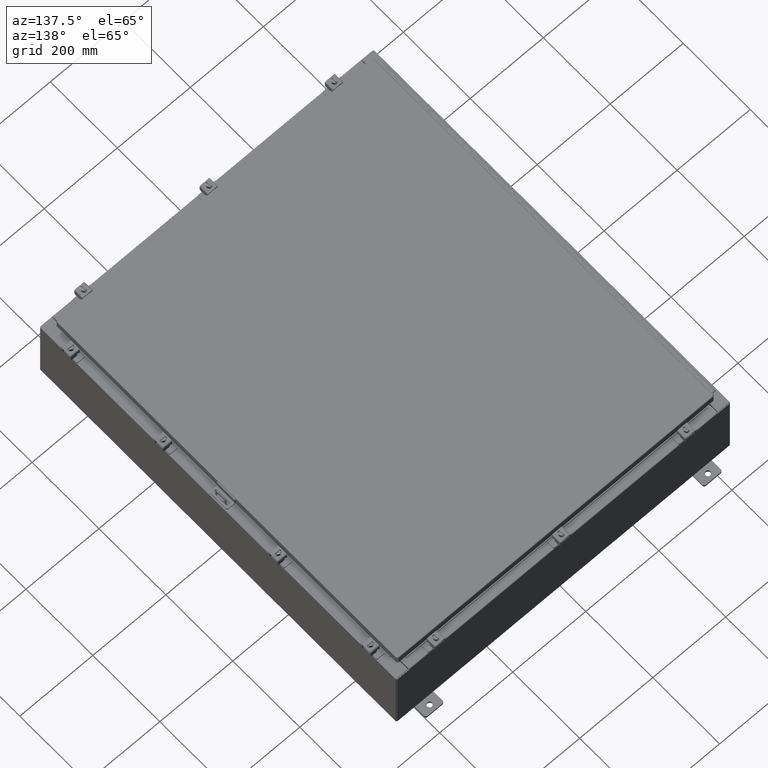
[diagram: clean part render]
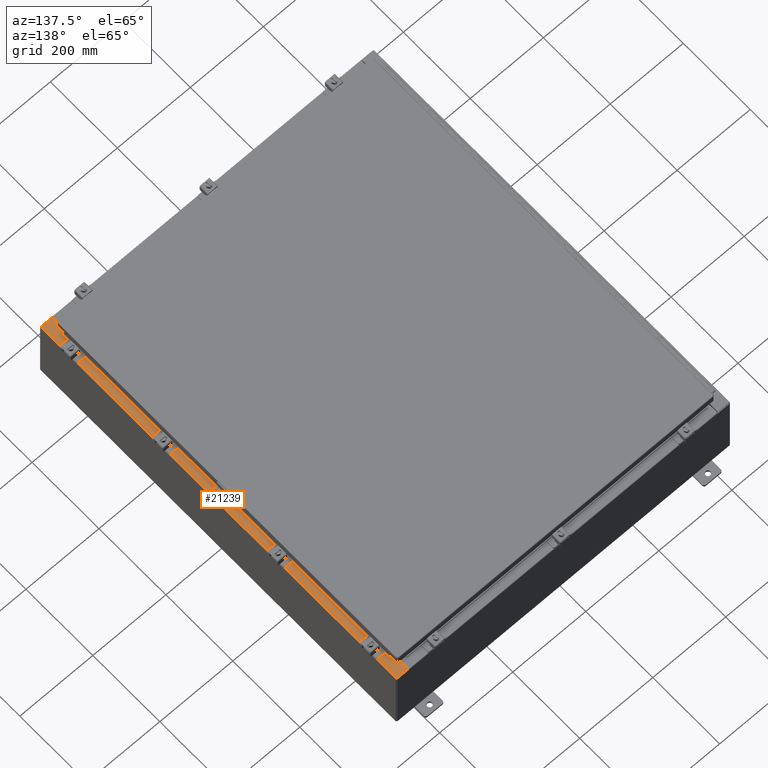
[diagram: same view with one face highlighted and labeled with its STEP entity id]
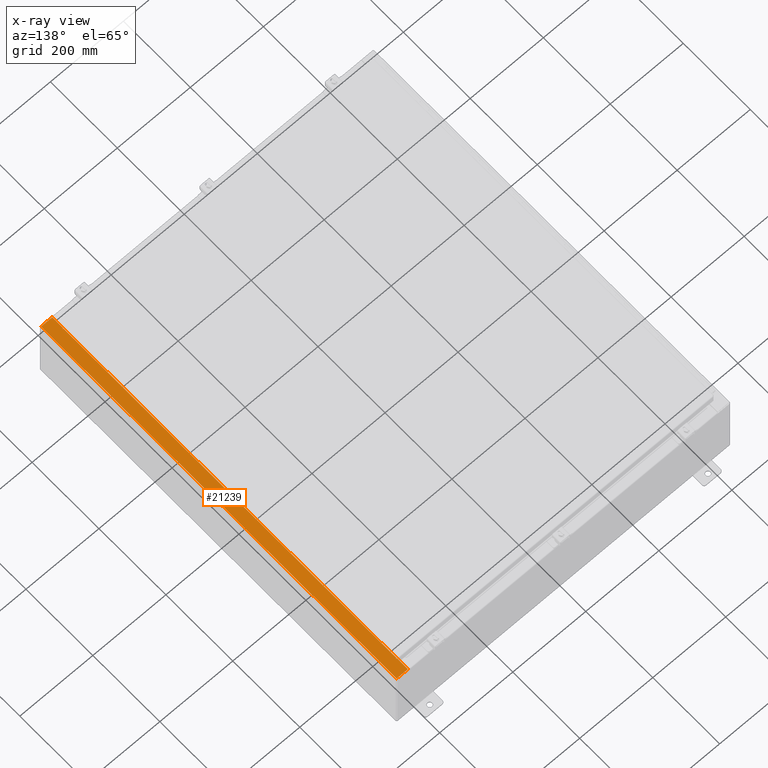
[diagram: x-ray of the same camera — body ghosted, the highlighted face saturated]
A machine part, auxiliary view. The second image highlights one B-rep face of the part: STEP entity #21239.
The next image is the same camera in x-ray: the body ghosted, the highlighted face saturated — about 0% of this face is hidden behind the body in this view.
In plain terms, the highlighted planar face has unit normal (-0, -0, -1).
Its self-contained STEP definition (entity closure, byte-faithful):
#219 = DIRECTION ( 'NONE',  ( 1.000000000000000000, 0.0000000000000000000, -6.241167087353087800E-015 ) ) ;
#404 = LINE ( 'NONE', #20154, #29639 ) ;
#541 = DIRECTION ( 'NONE',  ( 0.0000000000000000000, -1.000000000000000000, 2.611047864225856100E-017 ) ) ;
#1811 = VERTEX_POINT ( 'NONE', #29909 ) ;
#2272 = DIRECTION ( 'NONE',  ( 1.000000000000000000, 0.0000000000000000000, 0.0000000000000000000 ) ) ;
#2788 = CARTESIAN_POINT ( 'NONE',  ( 4.972393517341169600E-014, 20.92529999999998600, 7.925300000000111900 ) ) ;
#3108 = CARTESIAN_POINT ( 'NONE',  ( 16.71270000000003400, -19.59375000000000000, 7.925300000000009800 ) ) ;
#3280 = DIRECTION ( 'NONE',  ( -0.0000000000000000000, 1.000000000000000000, -0.0000000000000000000 ) ) ;
#3566 = EDGE_LOOP ( 'NONE', ( #34506, #25621, #35337, #49483, #14101, #29205, #41661, #11765, #45971, #24245, #45982, #10101 ) ) ;
#4234 = VECTOR ( 'NONE', #2272, 39.37007874015748100 ) ;
#5045 = CARTESIAN_POINT ( 'NONE',  ( 16.75005000000003400, 19.63109999999998200, 7.925300000000009800 ) ) ;
#5579 = DIRECTION ( 'NONE',  ( 6.241167087353086200E-015, 2.611047864225855500E-017, 1.000000000000000000 ) ) ;
#6613 = VERTEX_POINT ( 'NONE', #30803 ) ;
#6875 = CARTESIAN_POINT ( 'NONE',  ( 16.75005000000003400, -19.59375000000000000, 7.925300000000007100 ) ) ;
#7342 = CARTESIAN_POINT ( 'NONE',  ( 16.69970000000003200, -20.92529999999999600, 7.925300000000009800 ) ) ;
#8030 = PLANE ( 'NONE',  #40614 ) ;
#8435 = VECTOR ( 'NONE', #39370, 39.37007874015748100 ) ;
#8526 = VECTOR ( 'NONE', #21756, 39.37007874015748100 ) ;
#9708 = LINE ( 'NONE', #2788, #8526 ) ;
#9870 = CARTESIAN_POINT ( 'NONE',  ( 16.75005000000003400, -19.59375000000000000, 7.925300000000009800 ) ) ;
#10101 = ORIENTED_EDGE ( 'NONE', *, *, #35786, .F. ) ;
#10817 = AXIS2_PLACEMENT_3D ( 'NONE', #28372, #5579, #32215 ) ;
#11448 = VERTEX_POINT ( 'NONE', #47410 ) ;
#11765 = ORIENTED_EDGE ( 'NONE', *, *, #33361, .F. ) ;
#11835 = CARTESIAN_POINT ( 'NONE',  ( 4.972393517341169600E-014, 2.069333763834946700E-016, 7.925300000000111900 ) ) ;
#12854 = CARTESIAN_POINT ( 'NONE',  ( 16.75005000000003400, 19.63109999999998200, 7.925300000000007100 ) ) ;
#13108 = CARTESIAN_POINT ( 'NONE',  ( 17.91230000000002700, -20.92529999999999600, 7.925300000000000900 ) ) ;
#13408 = VECTOR ( 'NONE', #219, 39.37007874015748100 ) ;
#14101 = ORIENTED_EDGE ( 'NONE', *, *, #31604, .T. ) ;
#14439 = VECTOR ( 'NONE', #541, 39.37007874015748100 ) ;
#14824 = LINE ( 'NONE', #9870, #35098 ) ;
#15558 = LINE ( 'NONE', #25078, #4234 ) ;
#15725 = DIRECTION ( 'NONE',  ( -6.241167087353086200E-015, -2.611047864225855500E-017, -1.000000000000000000 ) ) ;
#16140 = LINE ( 'NONE', #3108, #45420 ) ;
#16172 = AXIS2_PLACEMENT_3D ( 'NONE', #42780, #19912, #46670 ) ;
#16777 = CARTESIAN_POINT ( 'NONE',  ( 16.69970000000003200, -19.63110000000000000, 7.925300000000008900 ) ) ;
#16834 = VERTEX_POINT ( 'NONE', #18709 ) ;
#17057 = CIRCLE ( 'NONE', #10817, 0.01867499999999949400 ) ;
#17823 = LINE ( 'NONE', #16777, #45906 ) ;
#18318 = VERTEX_POINT ( 'NONE', #42105 ) ;
#18709 = CARTESIAN_POINT ( 'NONE',  ( 16.75005000000003400, -19.63109999999999600, 7.925300000000008900 ) ) ;
#19097 = VERTEX_POINT ( 'NONE', #23325 ) ;
#19779 = LINE ( 'NONE', #5045, #8435 ) ;
#19912 = DIRECTION ( 'NONE',  ( 6.241167087353086200E-015, 2.611047864225855500E-017, 1.000000000000000000 ) ) ;
#20053 = CARTESIAN_POINT ( 'NONE',  ( 16.71270000000003400, 19.59374999999998200, 7.925300000000009800 ) ) ;
#20154 = CARTESIAN_POINT ( 'NONE',  ( 16.69970000000003200, 2.069333763834919300E-016, 7.925300000000008900 ) ) ;
#20267 = CIRCLE ( 'NONE', #16172, 0.01867499999999949400 ) ;
#20355 = CARTESIAN_POINT ( 'NONE',  ( 16.69970000000003200, -19.63110000000000000, 7.925300000000008900 ) ) ;
#20750 = VERTEX_POINT ( 'NONE', #20053 ) ;
#21239 = ADVANCED_FACE ( 'NONE', ( #38615 ), #8030, .F. ) ;
#21756 = DIRECTION ( 'NONE',  ( -1.000000000000000000, 0.0000000000000000000, 6.241167087353087800E-015 ) ) ;
#23037 = CARTESIAN_POINT ( 'NONE',  ( 4.972393517341169600E-014, -20.92529999999999600, 7.925300000000113700 ) ) ;
#23325 = CARTESIAN_POINT ( 'NONE',  ( 17.91230000000002700, 20.92529999999997500, 7.925300000000000000 ) ) ;
#23366 = CARTESIAN_POINT ( 'NONE',  ( 16.69970000000003200, 2.069333763834919300E-016, 7.925300000000008900 ) ) ;
#24245 = ORIENTED_EDGE ( 'NONE', *, *, #33887, .F. ) ;
#24549 = LINE ( 'NONE', #23366, #14439 ) ;
#25078 = CARTESIAN_POINT ( 'NONE',  ( 16.71270000000003400, 19.59374999999998200, 7.925300000000009800 ) ) ;
#25621 = ORIENTED_EDGE ( 'NONE', *, *, #29726, .T. ) ;
#27826 = CARTESIAN_POINT ( 'NONE',  ( 17.91230000000002700, -20.92529999999999600, 7.925300000000000900 ) ) ;
#27860 = VERTEX_POINT ( 'NONE', #20355 ) ;
#28372 = CARTESIAN_POINT ( 'NONE',  ( 16.75005000000003400, -19.61242499999999800, 7.925300000000009800 ) ) ;
#28804 = EDGE_CURVE ( 'NONE', #27860, #16834, #17823, .T. ) ;
#29205 = ORIENTED_EDGE ( 'NONE', *, *, #32258, .T. ) ;
#29639 = VECTOR ( 'NONE', #35331, 39.37007874015748100 ) ;
#29726 = EDGE_CURVE ( 'NONE', #27860, #45978, #404, .T. ) ;
#29909 = CARTESIAN_POINT ( 'NONE',  ( 16.75005000000003400, 19.59374999999998200, 7.925300000000007100 ) ) ;
#30665 = EDGE_CURVE ( 'NONE', #45978, #37733, #42675, .T. ) ;
#30803 = CARTESIAN_POINT ( 'NONE',  ( 16.71270000000003400, -19.59375000000000000, 7.925300000000009800 ) ) ;
#31468 = EDGE_CURVE ( 'NONE', #19097, #37733, #47400, .T. ) ;
#31604 = EDGE_CURVE ( 'NONE', #19097, #11448, #9708, .T. ) ;
#32215 = DIRECTION ( 'NONE',  ( 1.000000000000000000, 0.0000000000000000000, 0.0000000000000000000 ) ) ;
#32258 = EDGE_CURVE ( 'NONE', #11448, #18318, #24549, .T. ) ;
#32403 = EDGE_CURVE ( 'NONE', #43419, #18318, #19779, .T. ) ;
#33361 = EDGE_CURVE ( 'NONE', #1811, #43419, #20267, .T. ) ;
#33741 = EDGE_CURVE ( 'NONE', #20750, #1811, #15558, .T. ) ;
#33887 = EDGE_CURVE ( 'NONE', #6613, #20750, #16140, .T. ) ;
#34177 = EDGE_CURVE ( 'NONE', #36026, #6613, #14824, .T. ) ;
#34506 = ORIENTED_EDGE ( 'NONE', *, *, #28804, .F. ) ;
#35098 = VECTOR ( 'NONE', #36574, 39.37007874015748100 ) ;
#35331 = DIRECTION ( 'NONE',  ( 0.0000000000000000000, -1.000000000000000000, 2.611047864225856100E-017 ) ) ;
#35337 = ORIENTED_EDGE ( 'NONE', *, *, #30665, .T. ) ;
#35786 = EDGE_CURVE ( 'NONE', #16834, #36026, #17057, .T. ) ;
#35934 = DIRECTION ( 'NONE',  ( 1.000000000000000000, 4.340572780399910900E-014, 2.170286390199955400E-014 ) ) ;
#35976 = DIRECTION ( 'NONE',  ( -0.0000000000000000000, -1.000000000000000000, 2.611047864225856100E-017 ) ) ;
#36002 = VECTOR ( 'NONE', #35976, 39.37007874015748100 ) ;
#36026 = VERTEX_POINT ( 'NONE', #6875 ) ;
#36574 = DIRECTION ( 'NONE',  ( -1.000000000000000000, 0.0000000000000000000, 0.0000000000000000000 ) ) ;
#37733 = VERTEX_POINT ( 'NONE', #27826 ) ;
#38615 = FACE_OUTER_BOUND ( 'NONE', #3566, .T. ) ;
#39370 = DIRECTION ( 'NONE',  ( -1.000000000000000000, 4.340572780399910900E-014, -2.170286390199955400E-014 ) ) ;
#40614 = AXIS2_PLACEMENT_3D ( 'NONE', #11835, #15725, #42403 ) ;
#41661 = ORIENTED_EDGE ( 'NONE', *, *, #32403, .F. ) ;
#42105 = CARTESIAN_POINT ( 'NONE',  ( 16.69970000000003200, 19.63109999999997500, 7.925300000000008900 ) ) ;
#42403 = DIRECTION ( 'NONE',  ( -1.000000000000000000, 0.0000000000000000000, 6.241167087353086200E-015 ) ) ;
#42675 = LINE ( 'NONE', #23037, #13408 ) ;
#42780 = CARTESIAN_POINT ( 'NONE',  ( 16.75005000000003400, 19.61242499999998000, 7.925300000000009800 ) ) ;
#43419 = VERTEX_POINT ( 'NONE', #12854 ) ;
#45420 = VECTOR ( 'NONE', #3280, 39.37007874015748100 ) ;
#45906 = VECTOR ( 'NONE', #35934, 39.37007874015748100 ) ;
#45971 = ORIENTED_EDGE ( 'NONE', *, *, #33741, .F. ) ;
#45978 = VERTEX_POINT ( 'NONE', #7342 ) ;
#45982 = ORIENTED_EDGE ( 'NONE', *, *, #34177, .F. ) ;
#46670 = DIRECTION ( 'NONE',  ( 1.000000000000000000, 0.0000000000000000000, 0.0000000000000000000 ) ) ;
#47400 = LINE ( 'NONE', #13108, #36002 ) ;
#47410 = CARTESIAN_POINT ( 'NONE',  ( 16.69970000000003200, 20.92529999999997900, 7.925300000000008900 ) ) ;
#49483 = ORIENTED_EDGE ( 'NONE', *, *, #31468, .F. ) ;